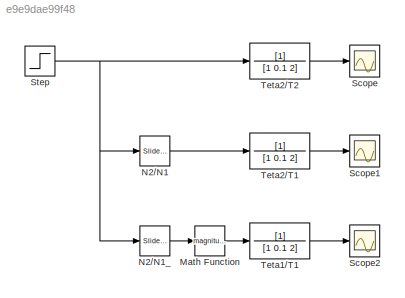
MODEL slx_e9e9dae99f48
KIND model
CONFIG AbsTol = auto
CONFIG FixedStep = auto
CONFIG MaxStep = auto
CONFIG MinStep = auto
CONFIG RelTol = 1e-3
CONFIG SampleTimeConstraint = Unconstrained
CONFIG Solver = ode45
CONFIG SolverMode = Auto
CONFIG SolverName = ode45
CONFIG StartTime = 0.0
CONFIG StopTime = 10.0
BLOCK [Math] Math Function
  Operator = magnitude^2
  Ports = [1, 1]
BLOCK [Reference] N2//N1  REF=simulink/Math
Operations/Slider
Gain
  Ports = [1, 1]
  SourceBlock = simulink/Math\nOperations/Slider\nGain
  SourceType = Slider Gain
  gain = 0.56221
  high = 2
  low = 0
BLOCK [Reference] N2//N1_  REF=simulink/Math
Operations/Slider
Gain
  Ports = [1, 1]
  SourceBlock = simulink/Math\nOperations/Slider\nGain
  SourceType = Slider Gain
  gain = 1
  high = 2
  low = 0
BLOCK [Scope] Scope
  Floating = off
  NumInputPorts = 1
  Ports = [1]
BLOCK [Scope] Scope1
  Floating = off
  NumInputPorts = 1
  Ports = [1]
  SaveName = ScopeData1
BLOCK [Scope] Scope2
  Floating = off
  NumInputPorts = 1
  Ports = [1]
  SaveName = ScopeData2
BLOCK [Step] Step
  SampleTime = 0
BLOCK [TransferFcn] Teta1//T1
  Denominator = [1 0.1 2]
BLOCK [TransferFcn] Teta2//T1
  Denominator = [1 0.1 2]
BLOCK [TransferFcn] Teta2//T2
  Denominator = [1 0.1 2]
LINE Math Function:1 -> Teta1//T1:1
LINE N2//N1:1 -> Teta2//T1:1
LINE N2//N1_:1 -> Math Function:1
NET Step:1 -> N2//N1:1, N2//N1_:1, Teta2//T2:1
LINE Teta1//T1:1 -> Scope2:1
LINE Teta2//T1:1 -> Scope1:1
LINE Teta2//T2:1 -> Scope:1
note: NET lines group one-source signal fan-out (src -> all destinations, sorted); 1:1 wires keep LINE
